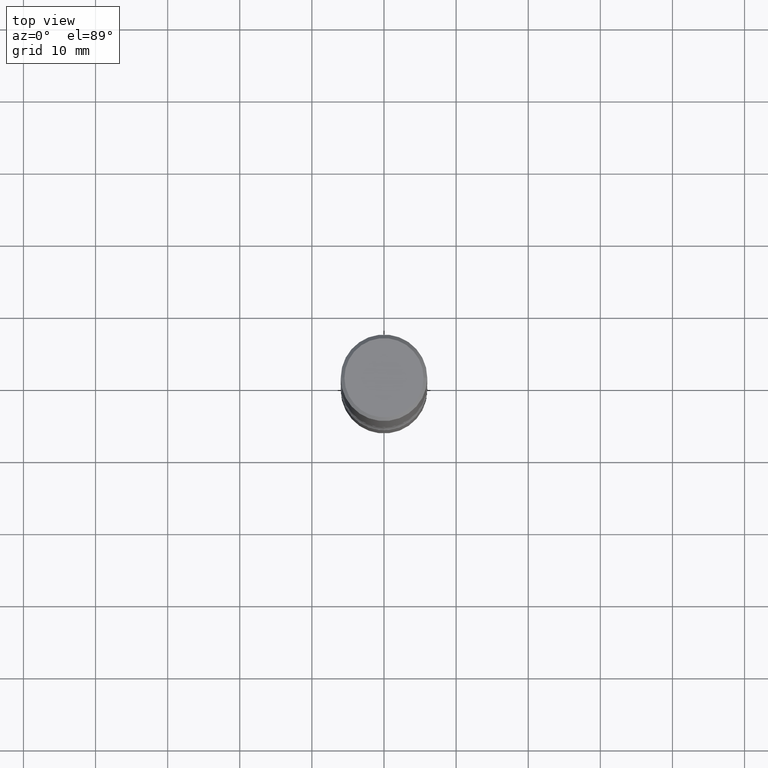
[diagram: clean part render]
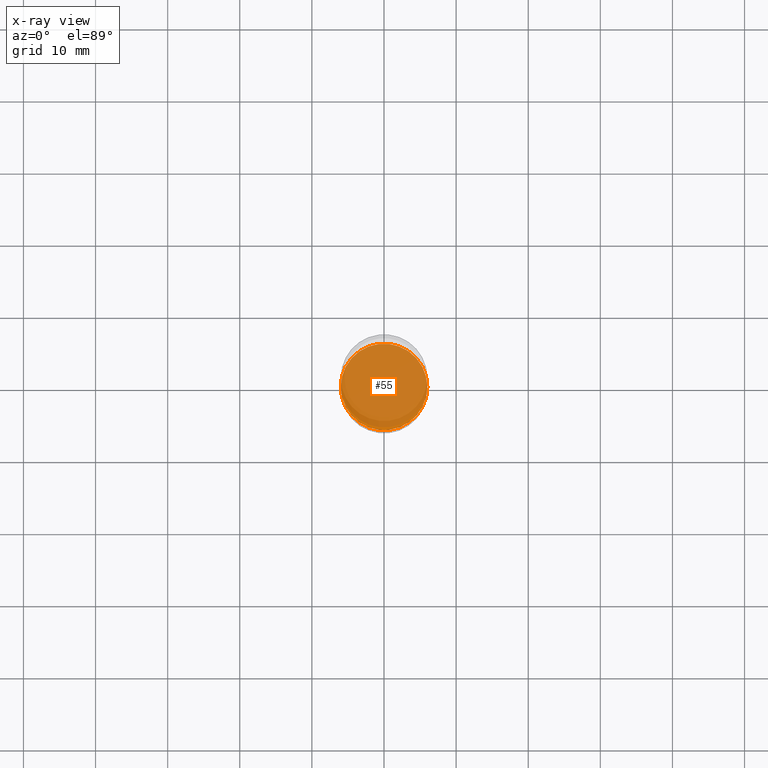
[diagram: x-ray — body ghosted, one internal face saturated and labeled with its STEP entity id]
A machine part, top view, then the same camera in x-ray: the body is ghosted and one INTERNAL B-rep face — a face not visible from any outside direction — is saturated and labeled: STEP entity #55.
In plain terms, the highlighted planar face has unit normal (0, -0, -1).
Its self-contained STEP definition (entity closure, byte-faithful):
#20 = CIRCLE ( 'NONE', #140, 0.2362000000000001321 ) ;
#23 = PLANE ( 'NONE',  #65 ) ;
#49 = DIRECTION ( 'NONE',  ( 1.000000000000000000, -6.982962677686269077E-15, 0.000000000000000000 ) ) ;
#55 = ADVANCED_FACE ( 'NONE', ( #239 ), #23, .F. ) ;
#62 = CARTESIAN_POINT ( 'NONE',  ( 7.124628819939777829E-29, -1.017208173258562247E-14, -2.913400000000000212 ) ) ;
#65 = AXIS2_PLACEMENT_3D ( 'NONE', #195, #539, #421 ) ;
#69 = DIRECTION ( 'NONE',  ( 1.000000000000000000, -6.982962677686269077E-15, 0.000000000000000000 ) ) ;
#90 = CARTESIAN_POINT ( 'NONE',  ( 7.124628819939777829E-29, -1.017208173258562247E-14, -2.913400000000000212 ) ) ;
#133 = VERTEX_POINT ( 'NONE', #272 ) ;
#140 = AXIS2_PLACEMENT_3D ( 'NONE', #62, #412, #69 ) ;
#142 = EDGE_CURVE ( 'NONE', #133, #401, #435, .T. ) ;
#195 = CARTESIAN_POINT ( 'NONE',  ( 7.124628819939777829E-29, -1.017208173258562247E-14, -2.913400000000000212 ) ) ;
#196 = EDGE_CURVE ( 'NONE', #401, #133, #20, .T. ) ;
#239 = FACE_OUTER_BOUND ( 'NONE', #270, .T. ) ;
#243 = ORIENTED_EDGE ( 'NONE', *, *, #196, .T. ) ;
#270 = EDGE_LOOP ( 'NONE', ( #391, #243 ) ) ;
#272 = CARTESIAN_POINT ( 'NONE',  ( 0.2362000000000001321, -1.182145751705511899E-14, -2.913400000000000212 ) ) ;
#365 = DIRECTION ( 'NONE',  ( -2.445468806185136597E-29, 3.491481338843145583E-15, 1.000000000000000000 ) ) ;
#391 = ORIENTED_EDGE ( 'NONE', *, *, #142, .T. ) ;
#401 = VERTEX_POINT ( 'NONE', #451 ) ;
#412 = DIRECTION ( 'NONE',  ( -2.445468806185136597E-29, 3.491481338843145583E-15, 1.000000000000000000 ) ) ;
#421 = DIRECTION ( 'NONE',  ( -1.000000000000000000, 6.982962677686265922E-15, -4.876176775795935793E-29 ) ) ;
#435 = CIRCLE ( 'NONE', #528, 0.2362000000000001321 ) ;
#451 = CARTESIAN_POINT ( 'NONE',  ( -0.2362000000000001321, -1.024632884875258096E-14, -2.913400000000000212 ) ) ;
#528 = AXIS2_PLACEMENT_3D ( 'NONE', #90, #365, #49 ) ;
#539 = DIRECTION ( 'NONE',  ( 2.438088387897960049E-29, -3.491481338843145188E-15, -1.000000000000000000 ) ) ;